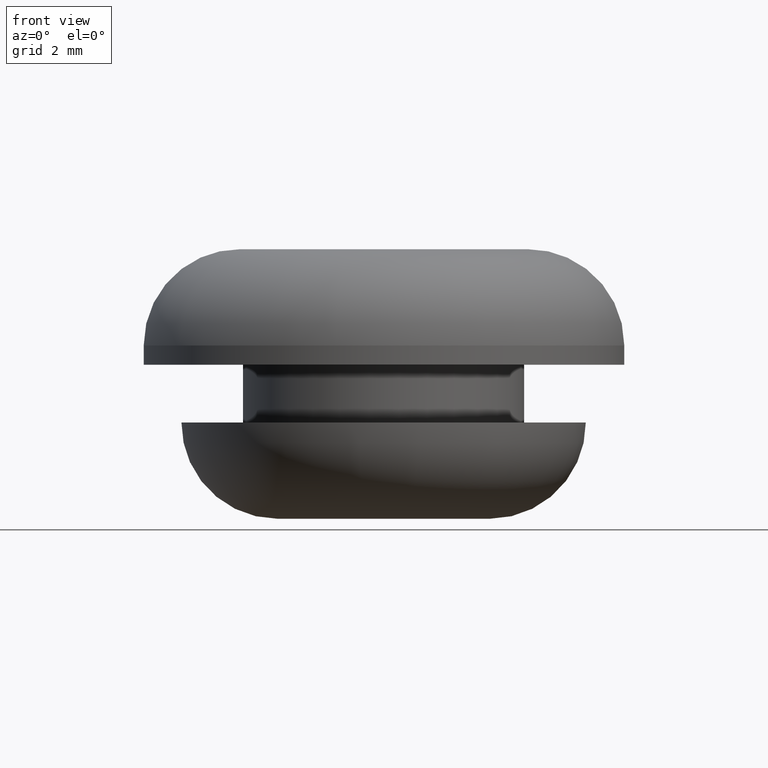
[diagram: clean part render]
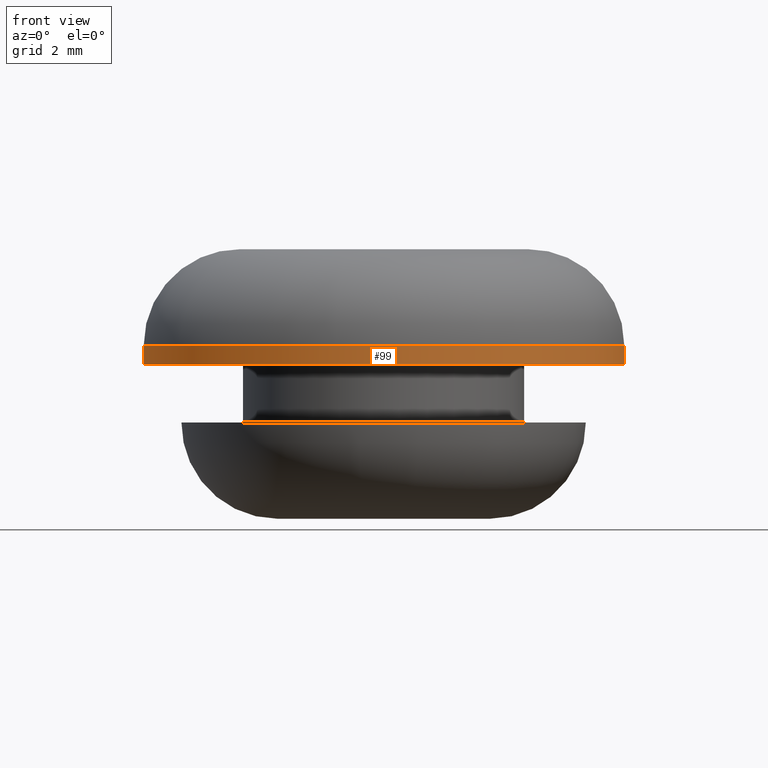
[diagram: same view with one face highlighted and labeled with its STEP entity id]
A machine part, front view. The second image highlights one B-rep face of the part: STEP entity #99.
In plain terms, the highlighted cylindrical surface (bore or boss wall) has radius 6.25 mm, axis along (0, 0, 1).
Its self-contained STEP definition (entity closure, byte-faithful):
#19=FACE_BOUND('',#42,.T.);
#25=CYLINDRICAL_SURFACE('',#115,6.25);
#30=FACE_OUTER_BOUND('',#41,.T.);
#41=EDGE_LOOP('',(#81));
#42=EDGE_LOOP('',(#82));
#55=CIRCLE('',#113,6.25);
#57=CIRCLE('',#116,6.25);
#63=VERTEX_POINT('',#170);
#65=VERTEX_POINT('',#175);
#71=EDGE_CURVE('',#63,#63,#55,.T.);
#73=EDGE_CURVE('',#65,#65,#57,.T.);
#81=ORIENTED_EDGE('',*,*,#73,.T.);
#82=ORIENTED_EDGE('',*,*,#71,.F.);
#99=ADVANCED_FACE('',(#30,#19),#25,.T.);
#113=AXIS2_PLACEMENT_3D('',#171,#138,#139);
#115=AXIS2_PLACEMENT_3D('',#174,#142,#143);
#116=AXIS2_PLACEMENT_3D('',#176,#144,#145);
#138=DIRECTION('center_axis',(0.,0.,1.));
#139=DIRECTION('ref_axis',(-1.,1.22464679914735E-16,0.));
#142=DIRECTION('center_axis',(0.,0.,1.));
#143=DIRECTION('ref_axis',(1.,0.,0.));
#144=DIRECTION('center_axis',(0.,0.,1.));
#145=DIRECTION('ref_axis',(1.,0.,0.));
#170=CARTESIAN_POINT('',(6.25,0.,0.499999999999999));
#171=CARTESIAN_POINT('Origin',(0.,0.,0.499999999999999));
#174=CARTESIAN_POINT('Origin',(0.,0.,1.5));
#175=CARTESIAN_POINT('',(6.25,0.,0.));
#176=CARTESIAN_POINT('Origin',(0.,0.,0.));